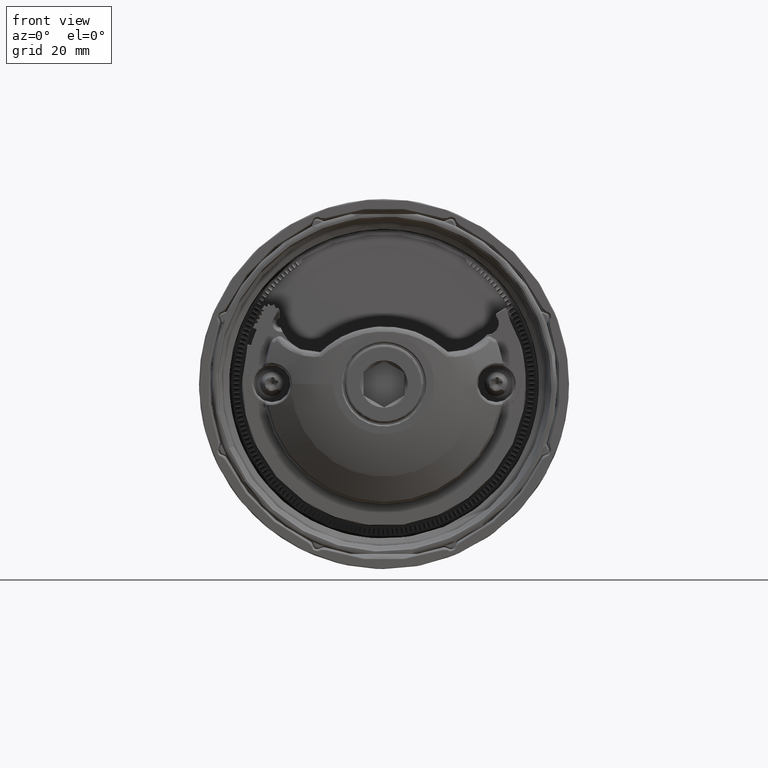
[diagram: clean part render]
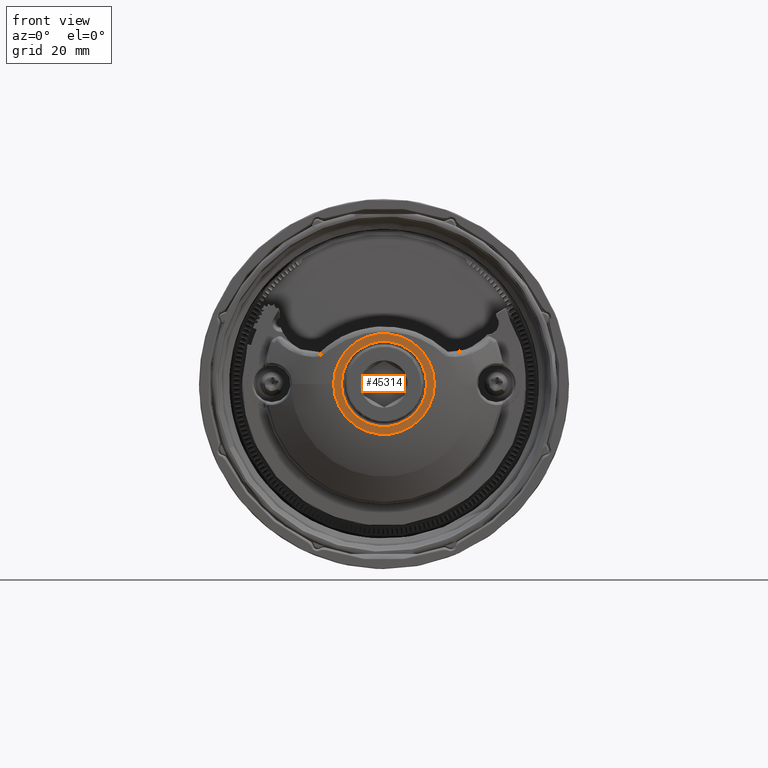
[diagram: same view with one face highlighted and labeled with its STEP entity id]
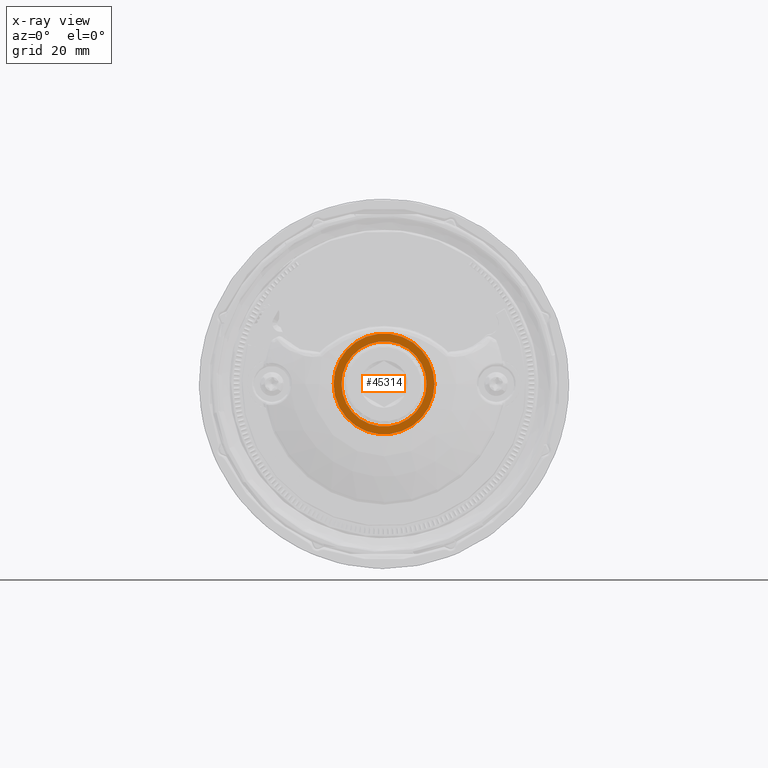
[diagram: x-ray of the same camera — body ghosted, the highlighted face saturated]
A machine part, front view. The second image highlights one B-rep face of the part: STEP entity #45314.
The next image is the same camera in x-ray: the body ghosted, the highlighted face saturated — about 0% of this face is hidden behind the body in this view.
In plain terms, the highlighted planar face has unit normal (-0, -1, 0).
Its self-contained STEP definition (entity closure, byte-faithful):
#1079=PLANE('',#49103);
#1563=FACE_BOUND('',#13295,.T.);
#10659=FACE_OUTER_BOUND('',#13294,.T.);
#13294=EDGE_LOOP('',(#36470));
#13295=EDGE_LOOP('',(#36471));
#15510=CIRCLE('',#48905,10.1);
#15525=CIRCLE('',#48930,8.55);
#20125=VERTEX_POINT('',#76119);
#20163=VERTEX_POINT('',#76422);
#25762=EDGE_CURVE('',#20125,#20125,#15510,.T.);
#25809=EDGE_CURVE('',#20163,#20163,#15525,.T.);
#36470=ORIENTED_EDGE('',*,*,#25762,.F.);
#36471=ORIENTED_EDGE('',*,*,#25809,.F.);
#45314=ADVANCED_FACE('',(#10659,#1563),#1079,.T.);
#48905=AXIS2_PLACEMENT_3D('',#76123,#57129,#57130);
#48930=AXIS2_PLACEMENT_3D('',#76423,#57185,#57186);
#49103=AXIS2_PLACEMENT_3D('',#78229,#57650,#57651);
#57129=DIRECTION('center_axis',(1.92944115831757E-15,1.,-2.28390504293506E-16));
#57130=DIRECTION('ref_axis',(-9.5953275564132E-16,-2.28390504293504E-16,
-1.));
#57185=DIRECTION('center_axis',(-1.92944115831757E-15,-1.,2.28390504293506E-16));
#57186=DIRECTION('ref_axis',(8.37072120259082E-16,2.28390504293505E-16,
1.));
#57650=DIRECTION('center_axis',(-1.92944115831757E-15,-1.,2.28390504293506E-16));
#57651=DIRECTION('ref_axis',(-1.,1.92944115831757E-15,9.59532755641319E-16));
#76119=CARTESIAN_POINT('',(-10.1000000000004,-15.7,2.16268185222032E-14));
#76123=CARTESIAN_POINT('Origin',(-4.36067730588377E-13,-15.7,1.06986444230871E-14));
#76422=CARTESIAN_POINT('',(-8.55000000000044,-15.7,1.99497224970913E-14));
#76423=CARTESIAN_POINT('Origin',(-4.36067730588377E-13,-15.7,1.06986444230871E-14));
#78229=CARTESIAN_POINT('Origin',(-4.44871443621387E-13,-15.7,-9.17499999999999));